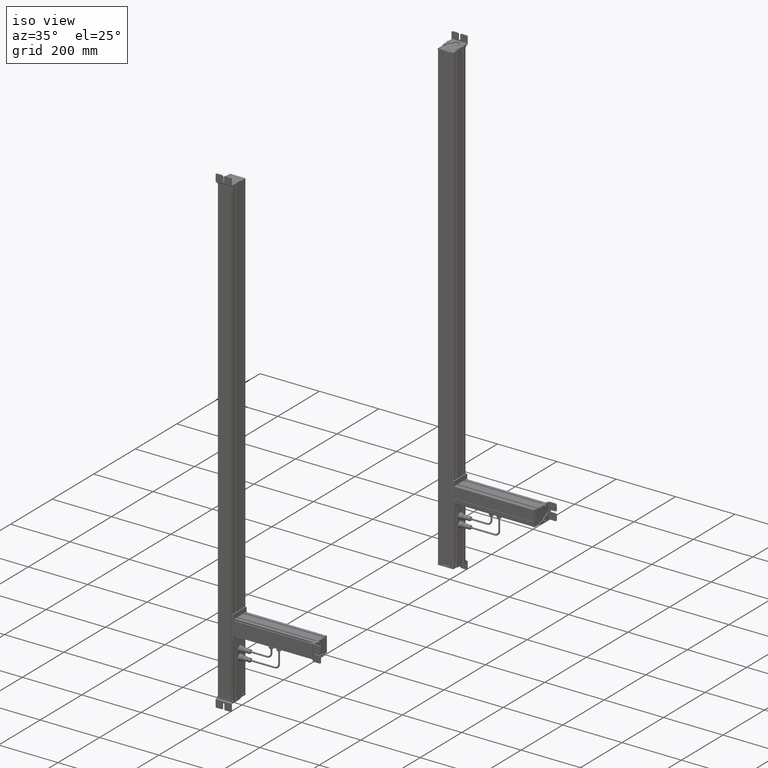
[diagram: clean part render]
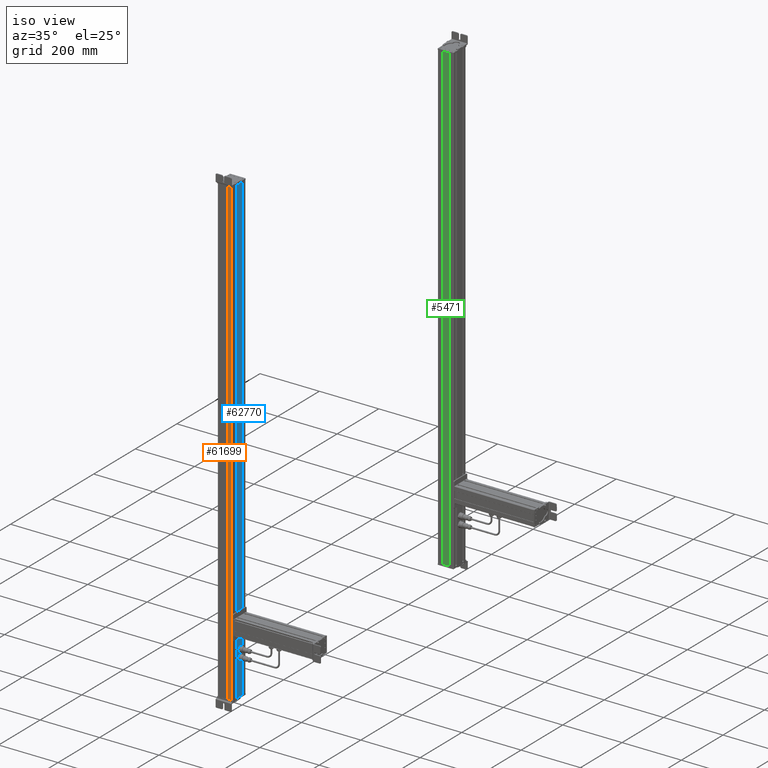
[diagram: same view with three faces highlighted in distinct colors, each labeled with its STEP entity id]
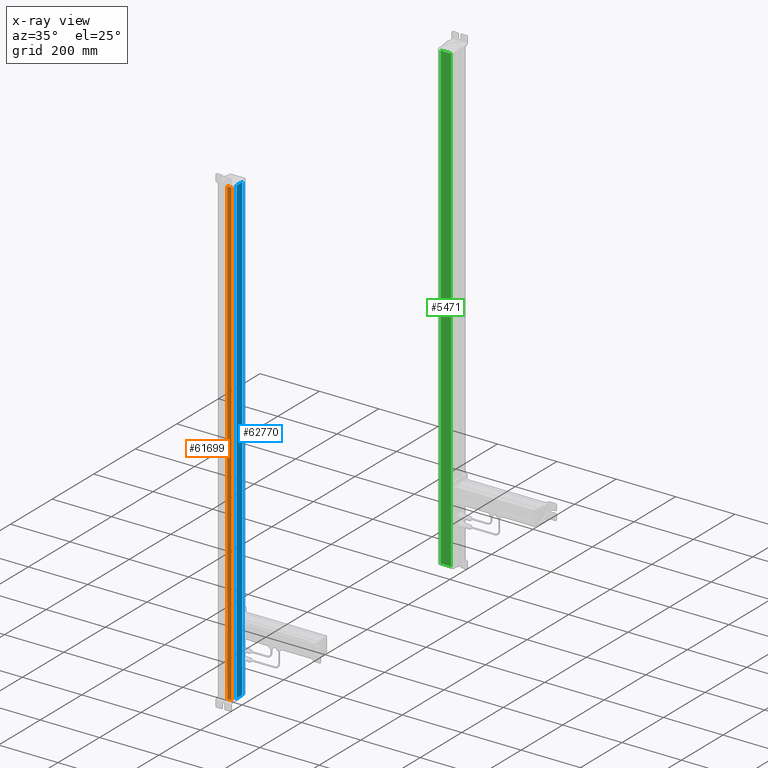
[diagram: x-ray of the same camera — body ghosted, the three highlighted faces saturated]
A machine part, iso view with three faces highlighted in distinct colors.
The next image is the same camera in x-ray (body ghosted, the three faces saturated) — at least one of them is partly hidden behind the body in this view.
Their STEP definitions:

[orange] entity #61699 — the highlighted planar face has unit normal (0, -1, 0).
#61519=CARTESIAN_POINT('Axis2P3D Location',(647.67209889,120.060780121,0.)) ;
#61652=CARTESIAN_POINT('Vertex',(647.67209889,120.060780121,1562.)) ;
#61659=CARTESIAN_POINT('Vertex',(647.67209889,120.060780121,0.)) ;
#61662=CARTESIAN_POINT('Line Origine',(647.67209889,120.060780121,781.)) ;
#61674=CARTESIAN_POINT('Line Origine',(654.908380451,120.060780121,0.)) ;
#61678=CARTESIAN_POINT('Vertex',(662.144662012,120.060780121,0.)) ;
#61681=CARTESIAN_POINT('Line Origine',(662.144662012,120.060780121,781.)) ;
#61685=CARTESIAN_POINT('Vertex',(662.144662012,120.060780121,1562.)) ;
#61688=CARTESIAN_POINT('Line Origine',(654.908380451,120.060780121,1562.)) ;
#61520=DIRECTION('Axis2P3D Direction',(0.,-1.,0.)) ;
#61521=DIRECTION('Axis2P3D XDirection',(1.,0.,0.)) ;
#61663=DIRECTION('Vector Direction',(0.,0.,1.)) ;
#61675=DIRECTION('Vector Direction',(1.,0.,0.)) ;
#61682=DIRECTION('Vector Direction',(0.,0.,1.)) ;
#61689=DIRECTION('Vector Direction',(1.,0.,0.)) ;
#61522=AXIS2_PLACEMENT_3D('Plane Axis2P3D',#61519,#61520,#61521) ;
#61694=ORIENTED_EDGE('',*,*,#61666,.F.) ;
#61695=ORIENTED_EDGE('',*,*,#61680,.T.) ;
#61696=ORIENTED_EDGE('',*,*,#61687,.T.) ;
#61697=ORIENTED_EDGE('',*,*,#61692,.F.) ;
#61664=VECTOR('Line Direction',#61663,1.) ;
#61676=VECTOR('Line Direction',#61675,1.) ;
#61683=VECTOR('Line Direction',#61682,1.) ;
#61690=VECTOR('Line Direction',#61689,1.) ;
#61699=ADVANCED_FACE('Body.2',(#61698),#61523,.T.) ;
#61666=EDGE_CURVE('',#61660,#61653,#61665,.T.) ;
#61680=EDGE_CURVE('',#61660,#61679,#61677,.T.) ;
#61687=EDGE_CURVE('',#61679,#61686,#61684,.T.) ;
#61692=EDGE_CURVE('',#61653,#61686,#61691,.T.) ;
#61693=EDGE_LOOP('',(#61694,#61695,#61696,#61697)) ;
#61698=FACE_OUTER_BOUND('',#61693,.T.) ;
#61665=LINE('Line',#61662,#61664) ;
#61677=LINE('Line',#61674,#61676) ;
#61684=LINE('Line',#61681,#61683) ;
#61691=LINE('Line',#61688,#61690) ;
#61523=PLANE('Plane',#61522) ;
#61653=VERTEX_POINT('',#61652) ;
#61660=VERTEX_POINT('',#61659) ;
#61679=VERTEX_POINT('',#61678) ;
#61686=VERTEX_POINT('',#61685) ;

[blue] entity #62770 — the highlighted planar face has unit normal (1, 0, 0).
#62031=CARTESIAN_POINT('Axis2P3D Location',(666.195883662,171.710394004,0.)) ;
#62723=CARTESIAN_POINT('Vertex',(666.195883661,138.767790275,0.)) ;
#62726=CARTESIAN_POINT('Line Origine',(666.195883661,138.767790275,781.)) ;
#62730=CARTESIAN_POINT('Vertex',(666.195883661,138.767790275,1562.)) ;
#62745=CARTESIAN_POINT('Line Origine',(666.195883662,152.38909214,0.)) ;
#62749=CARTESIAN_POINT('Vertex',(666.195883662,166.010394005,0.)) ;
#62752=CARTESIAN_POINT('Line Origine',(666.195883662,166.010394005,781.)) ;
#62756=CARTESIAN_POINT('Vertex',(666.195883662,166.010394005,1562.)) ;
#62759=CARTESIAN_POINT('Line Origine',(666.195883662,152.38909214,1562.)) ;
#62032=DIRECTION('Axis2P3D Direction',(1.,0.,0.)) ;
#62033=DIRECTION('Axis2P3D XDirection',(0.,1.,0.)) ;
#62727=DIRECTION('Vector Direction',(0.,0.,1.)) ;
#62746=DIRECTION('Vector Direction',(0.,1.,0.)) ;
#62753=DIRECTION('Vector Direction',(0.,0.,1.)) ;
#62760=DIRECTION('Vector Direction',(0.,1.,0.)) ;
#62034=AXIS2_PLACEMENT_3D('Plane Axis2P3D',#62031,#62032,#62033) ;
#62765=ORIENTED_EDGE('',*,*,#62732,.F.) ;
#62766=ORIENTED_EDGE('',*,*,#62751,.T.) ;
#62767=ORIENTED_EDGE('',*,*,#62758,.T.) ;
#62768=ORIENTED_EDGE('',*,*,#62763,.F.) ;
#62728=VECTOR('Line Direction',#62727,1.) ;
#62747=VECTOR('Line Direction',#62746,1.) ;
#62754=VECTOR('Line Direction',#62753,1.) ;
#62761=VECTOR('Line Direction',#62760,1.) ;
#62770=ADVANCED_FACE('Body.2',(#62769),#62035,.T.) ;
#62732=EDGE_CURVE('',#62724,#62731,#62729,.T.) ;
#62751=EDGE_CURVE('',#62724,#62750,#62748,.T.) ;
#62758=EDGE_CURVE('',#62750,#62757,#62755,.T.) ;
#62763=EDGE_CURVE('',#62731,#62757,#62762,.T.) ;
#62764=EDGE_LOOP('',(#62765,#62766,#62767,#62768)) ;
#62769=FACE_OUTER_BOUND('',#62764,.T.) ;
#62729=LINE('Line',#62726,#62728) ;
#62748=LINE('Line',#62745,#62747) ;
#62755=LINE('Line',#62752,#62754) ;
#62762=LINE('Line',#62759,#62761) ;
#62035=PLANE('Plane',#62034) ;
#62724=VERTEX_POINT('',#62723) ;
#62731=VERTEX_POINT('',#62730) ;
#62750=VERTEX_POINT('',#62749) ;
#62757=VERTEX_POINT('',#62756) ;

[green] entity #5471 — the highlighted planar face has unit normal (0, -1, 0).
#5388=CARTESIAN_POINT('Vertex',(622.718933105,180.560203323,0.)) ;
#5391=CARTESIAN_POINT('Line Origine',(639.443450928,180.560203323,0.)) ;
#5395=CARTESIAN_POINT('Vertex',(656.16796875,180.560203323,0.)) ;
#5428=CARTESIAN_POINT('Vertex',(622.718933105,180.560203323,1562.)) ;
#5431=CARTESIAN_POINT('Line Origine',(622.718933105,180.560203323,781.)) ;
#5448=CARTESIAN_POINT('Axis2P3D Location',(656.16796875,180.560203323,0.)) ;
#5453=CARTESIAN_POINT('Line Origine',(656.16796875,180.560203323,781.)) ;
#5457=CARTESIAN_POINT('Vertex',(656.16796875,180.560203323,1562.)) ;
#5460=CARTESIAN_POINT('Line Origine',(639.443450928,180.560203323,1562.)) ;
#5392=DIRECTION('Vector Direction',(-1.,0.,0.)) ;
#5432=DIRECTION('Vector Direction',(0.,0.,1.)) ;
#5449=DIRECTION('Axis2P3D Direction',(-0.,1.,0.)) ;
#5450=DIRECTION('Axis2P3D XDirection',(-1.,-0.,0.)) ;
#5454=DIRECTION('Vector Direction',(0.,0.,1.)) ;
#5461=DIRECTION('Vector Direction',(-1.,0.,0.)) ;
#5451=AXIS2_PLACEMENT_3D('Plane Axis2P3D',#5448,#5449,#5450) ;
#5466=ORIENTED_EDGE('',*,*,#5459,.F.) ;
#5467=ORIENTED_EDGE('',*,*,#5397,.F.) ;
#5468=ORIENTED_EDGE('',*,*,#5435,.T.) ;
#5469=ORIENTED_EDGE('',*,*,#5464,.F.) ;
#5393=VECTOR('Line Direction',#5392,1.) ;
#5433=VECTOR('Line Direction',#5432,1.) ;
#5455=VECTOR('Line Direction',#5454,1.) ;
#5462=VECTOR('Line Direction',#5461,1.) ;
#5471=ADVANCED_FACE('Body.3',(#5470),#5452,.T.) ;
#5397=EDGE_CURVE('',#5389,#5396,#5394,.F.) ;
#5435=EDGE_CURVE('',#5389,#5429,#5434,.T.) ;
#5459=EDGE_CURVE('',#5396,#5458,#5456,.T.) ;
#5464=EDGE_CURVE('',#5458,#5429,#5463,.T.) ;
#5465=EDGE_LOOP('',(#5466,#5467,#5468,#5469)) ;
#5470=FACE_OUTER_BOUND('',#5465,.T.) ;
#5394=LINE('Line',#5391,#5393) ;
#5434=LINE('Line',#5431,#5433) ;
#5456=LINE('Line',#5453,#5455) ;
#5463=LINE('Line',#5460,#5462) ;
#5452=PLANE('Plane',#5451) ;
#5389=VERTEX_POINT('',#5388) ;
#5396=VERTEX_POINT('',#5395) ;
#5429=VERTEX_POINT('',#5428) ;
#5458=VERTEX_POINT('',#5457) ;